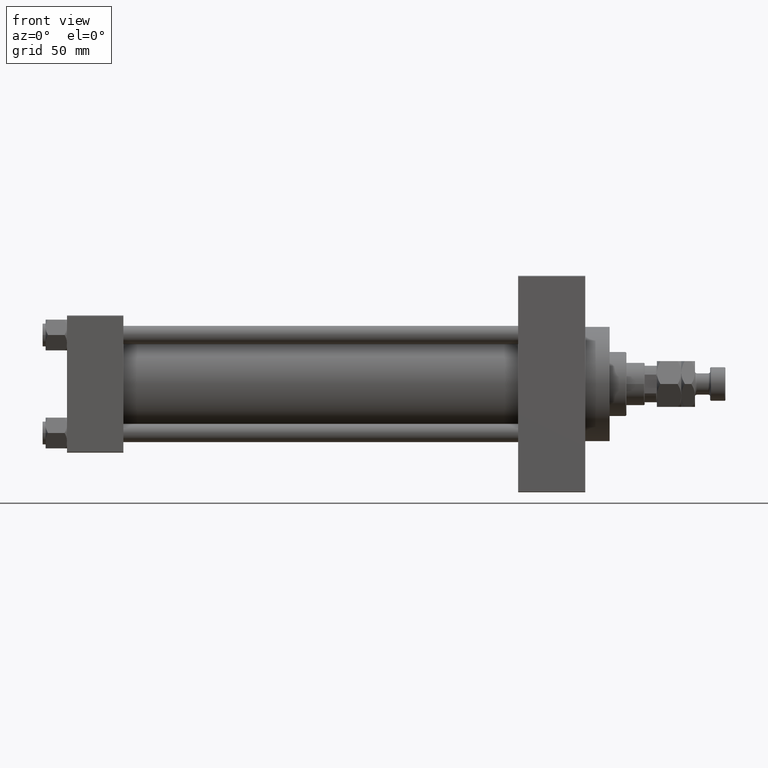
[diagram: clean part render]
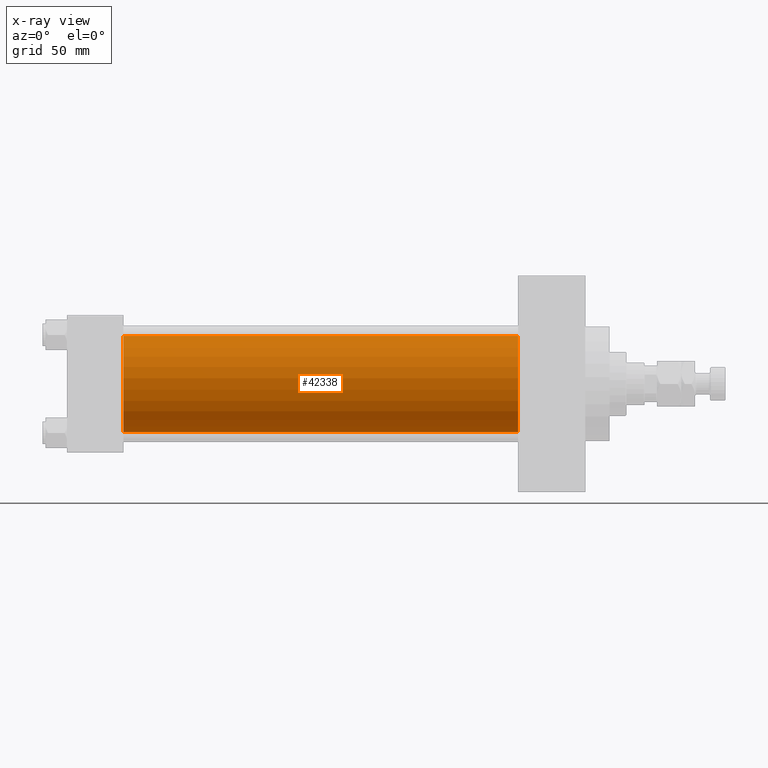
[diagram: x-ray — body ghosted, one internal face saturated and labeled with its STEP entity id]
A machine part, front view, then the same camera in x-ray: the body is ghosted and one INTERNAL B-rep face — a face not visible from any outside direction — is saturated and labeled: STEP entity #42338.
In plain terms, the highlighted cylindrical surface (partial cylindrical patch) has radius 31.5 mm, axis along (-1, -0, -0).
Its self-contained STEP definition (entity closure, byte-faithful):
#631 = VERTEX_POINT ( 'NONE', #30387 ) ;
#3257 = CARTESIAN_POINT ( 'NONE',  ( 296.0000000000000000, 1.255552203348951850E-15, -31.50000000000000000 ) ) ;
#6008 = ORIENTED_EDGE ( 'NONE', *, *, #37713, .T. ) ;
#10218 = CIRCLE ( 'NONE', #17639, 31.50000000000000000 ) ;
#10301 = CARTESIAN_POINT ( 'NONE',  ( 296.0000000000000000, -2.602085213965210642E-15, 31.50000000000000000 ) ) ;
#10904 = DIRECTION ( 'NONE',  ( 1.000000000000000000, 0.000000000000000000, 0.000000000000000000 ) ) ;
#12997 = CIRCLE ( 'NONE', #50833, 31.50000000000000000 ) ;
#15628 = CARTESIAN_POINT ( 'NONE',  ( 296.0000000000000000, -2.602085213965210642E-15, 31.50000000000000000 ) ) ;
#17331 = CARTESIAN_POINT ( 'NONE',  ( 296.0000000000000000, -2.602085213965210642E-15, 0.000000000000000000 ) ) ;
#17639 = AXIS2_PLACEMENT_3D ( 'NONE', #27445, #42141, #50148 ) ;
#17804 = DIRECTION ( 'NONE',  ( -1.000000000000000000, -0.000000000000000000, -0.000000000000000000 ) ) ;
#20212 = CARTESIAN_POINT ( 'NONE',  ( 296.0000000000000000, 1.255552203348951850E-15, -31.50000000000000000 ) ) ;
#20752 = EDGE_LOOP ( 'NONE', ( #6008, #29900, #26496, #48690 ) ) ;
#21192 = DIRECTION ( 'NONE',  ( -1.000000000000000000, -0.000000000000000000, -0.000000000000000000 ) ) ;
#21357 = VECTOR ( 'NONE', #31036, 1000.000000000000000 ) ;
#22736 = EDGE_CURVE ( 'NONE', #45010, #35057, #34262, .T. ) ;
#23198 = EDGE_CURVE ( 'NONE', #26767, #631, #42878, .T. ) ;
#26496 = ORIENTED_EDGE ( 'NONE', *, *, #45101, .F. ) ;
#26619 = DIRECTION ( 'NONE',  ( 0.000000000000000000, 0.000000000000000000, -1.000000000000000000 ) ) ;
#26767 = VERTEX_POINT ( 'NONE', #3257 ) ;
#27445 = CARTESIAN_POINT ( 'NONE',  ( 296.0000000000000000, -2.602085213965210642E-15, 0.000000000000000000 ) ) ;
#29432 = CYLINDRICAL_SURFACE ( 'NONE', #46619, 31.50000000000000000 ) ;
#29900 = ORIENTED_EDGE ( 'NONE', *, *, #23198, .T. ) ;
#30387 = CARTESIAN_POINT ( 'NONE',  ( 37.00000000000000000, 1.255552203348951850E-15, -31.50000000000000000 ) ) ;
#31036 = DIRECTION ( 'NONE',  ( -1.000000000000000000, -0.000000000000000000, -0.000000000000000000 ) ) ;
#32782 = FACE_OUTER_BOUND ( 'NONE', #20752, .T. ) ;
#34262 = LINE ( 'NONE', #10301, #46004 ) ;
#35057 = VERTEX_POINT ( 'NONE', #46057 ) ;
#37713 = EDGE_CURVE ( 'NONE', #45010, #26767, #10218, .T. ) ;
#41010 = DIRECTION ( 'NONE',  ( 0.000000000000000000, 0.000000000000000000, 1.000000000000000000 ) ) ;
#42141 = DIRECTION ( 'NONE',  ( 1.000000000000000000, 0.000000000000000000, 0.000000000000000000 ) ) ;
#42338 = ADVANCED_FACE ( 'NONE', ( #32782 ), #29432, .F. ) ;
#42878 = LINE ( 'NONE', #20212, #21357 ) ;
#45010 = VERTEX_POINT ( 'NONE', #15628 ) ;
#45101 = EDGE_CURVE ( 'NONE', #35057, #631, #12997, .T. ) ;
#46004 = VECTOR ( 'NONE', #17804, 1000.000000000000000 ) ;
#46057 = CARTESIAN_POINT ( 'NONE',  ( 37.00000000000000000, -2.602085213965210642E-15, 31.50000000000000000 ) ) ;
#46211 = CARTESIAN_POINT ( 'NONE',  ( 37.00000000000000000, -2.602085213965210642E-15, 0.000000000000000000 ) ) ;
#46619 = AXIS2_PLACEMENT_3D ( 'NONE', #17331, #21192, #41010 ) ;
#48690 = ORIENTED_EDGE ( 'NONE', *, *, #22736, .F. ) ;
#50148 = DIRECTION ( 'NONE',  ( 0.000000000000000000, 0.000000000000000000, -1.000000000000000000 ) ) ;
#50833 = AXIS2_PLACEMENT_3D ( 'NONE', #46211, #10904, #26619 ) ;